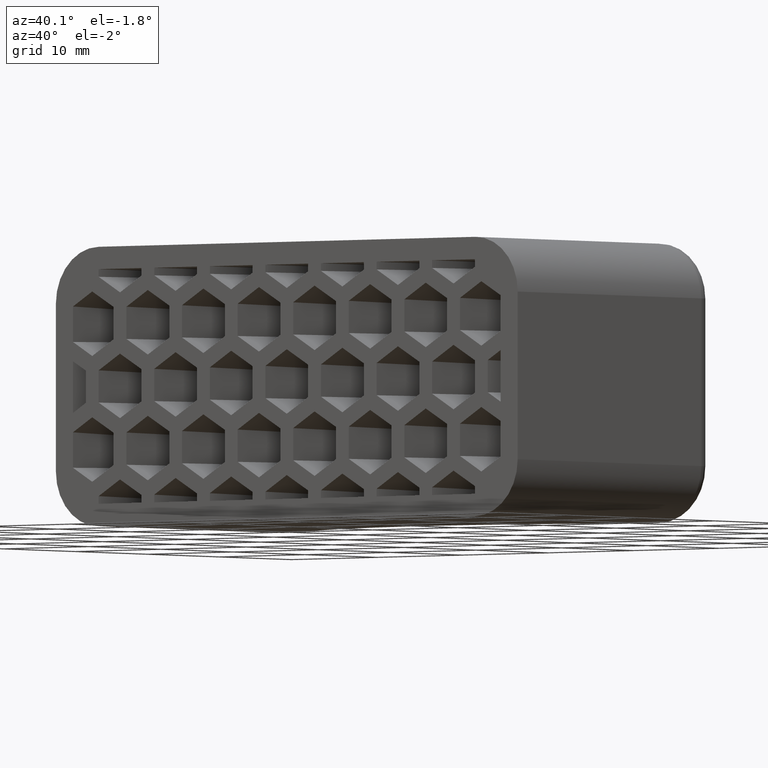
[diagram: clean part render]
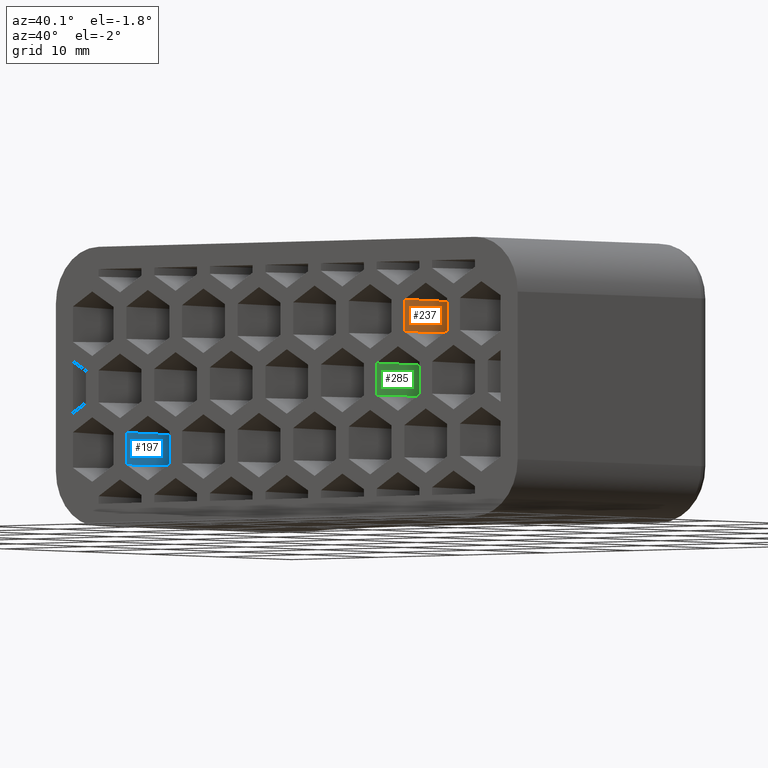
[diagram: same view with three faces highlighted in distinct colors, each labeled with its STEP entity id]
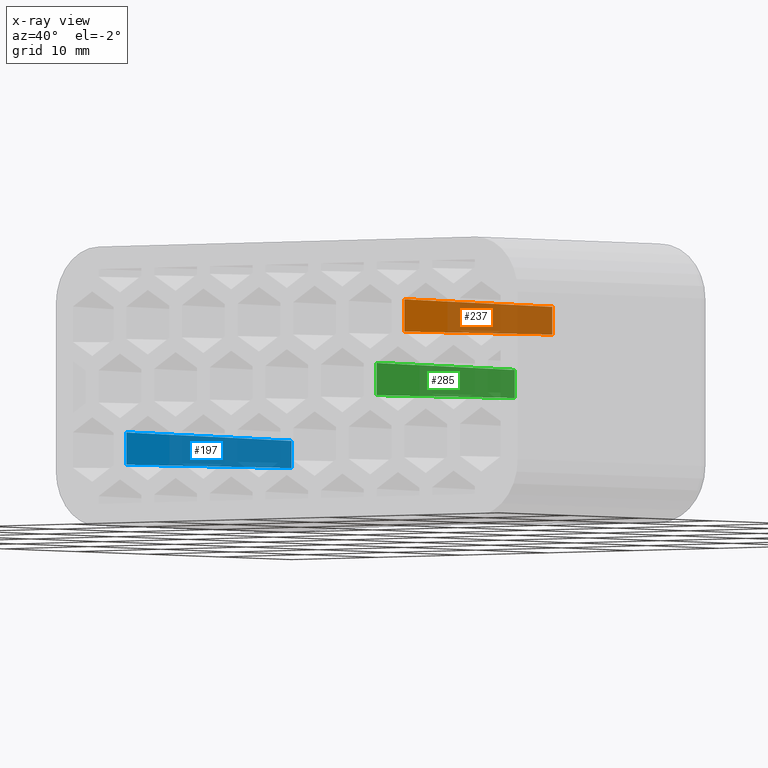
[diagram: x-ray of the same camera — body ghosted, the three highlighted faces saturated]
A machine part, auxiliary view with three faces highlighted in distinct colors.
The next image is the same camera in x-ray (body ghosted, the three faces saturated) — at least one of them is partly hidden behind the body in this view.
Their STEP definitions:

[orange] entity #237 — the highlighted planar face has unit normal (-0.9998, 0.0175, -0).
#237 = ADVANCED_FACE( '', ( #772 ), #773, .F. );
#772 = FACE_OUTER_BOUND( '', #1472, .T. );
#773 = PLANE( '', #1473 );
#1472 = EDGE_LOOP( '', ( #3209, #3210, #3211, #3212 ) );
#1473 = AXIS2_PLACEMENT_3D( '', #3213, #3214, #3215 );
#3209 = ORIENTED_EDGE( '', *, *, #5048, .T. );
#3210 = ORIENTED_EDGE( '', *, *, #5049, .T. );
#3211 = ORIENTED_EDGE( '', *, *, #4581, .T. );
#3212 = ORIENTED_EDGE( '', *, *, #5047, .F. );
#3213 = CARTESIAN_POINT( '', ( 13.7500000000000, 0.000000000000000, 1.44337567297406 ) );
#3214 = DIRECTION( '', ( -0.999847695156391, 0.0174524064372835, -5.55026966140510E-017 ) );
#3215 = DIRECTION( '', ( -0.0174524064372835, -0.999847695156391, 0.000000000000000 ) );
#4581 = EDGE_CURVE( '', #5549, #5547, #5550, .T. );
#5047 = EDGE_CURVE( '', #6315, #5547, #6317, .T. );
#5048 = EDGE_CURVE( '', #6315, #6318, #6319, .T. );
#5049 = EDGE_CURVE( '', #6318, #5549, #6320, .T. );
#5547 = VERTEX_POINT( '', #7057 );
#5549 = VERTEX_POINT( '', #7060 );
#5550 = LINE( '', #7061, #7062 );
#6315 = VERTEX_POINT( '', #8199 );
#6317 = LINE( '', #8201, #8202 );
#6318 = VERTEX_POINT( '', #8203 );
#6319 = LINE( '', #8204, #8205 );
#6320 = LINE( '', #8206, #8207 );
#7057 = CARTESIAN_POINT( '', ( 13.7500000000000, 0.000000000000000, 4.18578945162479 ) );
#7060 = CARTESIAN_POINT( '', ( 13.7500000000000, 0.000000000000000, 7.07254079757291 ) );
#7061 = CARTESIAN_POINT( '', ( 13.7500000000000, 0.000000000000000, 1.44337567297406 ) );
#7062 = VECTOR( '', #8815, 1000.00000000000 );
#8199 = CARTESIAN_POINT( '', ( 14.1010621529154, 20.1123372705367, 4.38847528011280 ) );
#8201 = CARTESIAN_POINT( '', ( 13.7495177870153, -0.0276259633910717, 4.18551104582826 ) );
#8202 = VECTOR( '', #9467, 1000.00000000000 );
#8203 = CARTESIAN_POINT( '', ( 14.1010621529154, 20.1123372705367, 6.86985496908489 ) );
#8204 = CARTESIAN_POINT( '', ( 14.1010621529154, 20.1123372705367, -10.5000000000000 ) );
#8205 = VECTOR( '', #9468, 1000.00000000000 );
#8206 = CARTESIAN_POINT( '', ( 13.7477919721227, -0.126497832369628, 7.07381560306225 ) );
#8207 = VECTOR( '', #9469, 1000.00000000000 );
#8815 = DIRECTION( '', ( 5.55111512312578E-017, 0.000000000000000, -1.00000000000000 ) );
#9467 = DIRECTION( '', ( -0.0174515205435363, -0.999796942337605, -0.0100756400835790 ) );
#9468 = DIRECTION( '', ( 0.000000000000000, 0.000000000000000, 1.00000000000000 ) );
#9469 = DIRECTION( '', ( -0.0174515205435363, -0.999796942337605, 0.0100756400835790 ) );

[blue] entity #197 — the highlighted planar face has unit normal (-0.9998, 0.0175, 0).
#197 = ADVANCED_FACE( '', ( #692 ), #693, .F. );
#692 = FACE_OUTER_BOUND( '', #1392, .T. );
#693 = PLANE( '', #1393 );
#1392 = EDGE_LOOP( '', ( #2923, #2924, #2925, #2926 ) );
#1393 = AXIS2_PLACEMENT_3D( '', #2927, #2928, #2929 );
#2923 = ORIENTED_EDGE( '', *, *, #4962, .T. );
#2924 = ORIENTED_EDGE( '', *, *, #4642, .F. );
#2925 = ORIENTED_EDGE( '', *, *, #4965, .F. );
#2926 = ORIENTED_EDGE( '', *, *, #4966, .F. );
#2927 = CARTESIAN_POINT( '', ( -18.7500000000000, 0.000000000000000, 1.44337567297407 ) );
#2928 = DIRECTION( '', ( -0.999847695156391, 0.0174524064372835, 2.77513483070255E-016 ) );
#2929 = DIRECTION( '', ( -0.0174524064372835, -0.999847695156391, 0.000000000000000 ) );
#4642 = EDGE_CURVE( '', #5669, #5671, #5672, .F. );
#4962 = EDGE_CURVE( '', #6191, #5671, #6192, .T. );
#4965 = EDGE_CURVE( '', #6195, #5669, #6196, .T. );
#4966 = EDGE_CURVE( '', #6191, #6195, #6197, .F. );
#5669 = VERTEX_POINT( '', #7240 );
#5671 = VERTEX_POINT( '', #7243 );
#5672 = LINE( '', #7244, #7245 );
#6191 = VERTEX_POINT( '', #8006 );
#6192 = LINE( '', #8007, #8008 );
#6195 = VERTEX_POINT( '', #8012 );
#6196 = LINE( '', #8013, #8014 );
#6197 = LINE( '', #8015, #8016 );
#7240 = CARTESIAN_POINT( '', ( -18.7500000000000, 0.000000000000000, -7.07254079757292 ) );
#7243 = CARTESIAN_POINT( '', ( -18.7500000000000, 0.000000000000000, -4.18578945162478 ) );
#7244 = CARTESIAN_POINT( '', ( -18.7500000000000, 0.000000000000000, -1.29903810567665 ) );
#7245 = VECTOR( '', #8876, 1000.00000000000 );
#8006 = CARTESIAN_POINT( '', ( -18.3576494798736, 22.4777462438494, -4.41231313003644 ) );
#8007 = CARTESIAN_POINT( '', ( -18.7462691942763, 0.213737716762474, -4.18794343331365 ) );
#8008 = VECTOR( '', #9350, 1000.00000000000 );
#8012 = CARTESIAN_POINT( '', ( -18.3576494798736, 22.4777462438494, -6.84601711916126 ) );
#8013 = CARTESIAN_POINT( '', ( -18.7485026017844, 0.0857858863196337, -7.07167627431004 ) );
#8014 = VECTOR( '', #9355, 1000.00000000000 );
#8015 = CARTESIAN_POINT( '', ( -18.3576494798736, 22.4777462438494, -10.5000000000000 ) );
#8016 = VECTOR( '', #9356, 1000.00000000000 );
#8876 = DIRECTION( '', ( -2.77555756156289E-016, 0.000000000000000, -1.00000000000000 ) );
#9350 = DIRECTION( '', ( -0.0174515205435363, -0.999796942337605, 0.0100756400835790 ) );
#9355 = DIRECTION( '', ( -0.0174515205435363, -0.999796942337605, -0.0100756400835790 ) );
#9356 = DIRECTION( '', ( 0.000000000000000, 0.000000000000000, 1.00000000000000 ) );

[green] entity #285 — the highlighted planar face has unit normal (-0.9998, 0.0175, -0).
#285 = ADVANCED_FACE( '', ( #868 ), #869, .F. );
#868 = FACE_OUTER_BOUND( '', #1568, .T. );
#869 = PLANE( '', #1569 );
#1568 = EDGE_LOOP( '', ( #3549, #3550, #3551, #3552 ) );
#1569 = AXIS2_PLACEMENT_3D( '', #3553, #3554, #3555 );
#3549 = ORIENTED_EDGE( '', *, *, #5150, .T. );
#3550 = ORIENTED_EDGE( '', *, *, #5151, .T. );
#3551 = ORIENTED_EDGE( '', *, *, #4623, .T. );
#3552 = ORIENTED_EDGE( '', *, *, #5149, .F. );
#3553 = CARTESIAN_POINT( '', ( 10.5000000000000, 0.000000000000000, 1.44337567297407 ) );
#3554 = DIRECTION( '', ( -0.999847695156391, 0.0174524064372835, -1.11005393228102E-016 ) );
#3555 = DIRECTION( '', ( -0.0174524064372835, -0.999847695156391, 0.000000000000000 ) );
#4623 = EDGE_CURVE( '', #5633, #5631, #5634, .T. );
#5149 = EDGE_CURVE( '', #6471, #5631, #6473, .T. );
#5150 = EDGE_CURVE( '', #6471, #6474, #6475, .T. );
#5151 = EDGE_CURVE( '', #6474, #5633, #6476, .T. );
#5631 = VERTEX_POINT( '', #7183 );
#5633 = VERTEX_POINT( '', #7186 );
#5634 = LINE( '', #7187, #7188 );
#6471 = VERTEX_POINT( '', #8429 );
#6473 = LINE( '', #8431, #8432 );
#6474 = VERTEX_POINT( '', #8433 );
#6475 = LINE( '', #8434, #8435 );
#6476 = LINE( '', #8436, #8437 );
#7183 = CARTESIAN_POINT( '', ( 10.5000000000000, 0.000000000000000, -1.44337567297406 ) );
#7186 = CARTESIAN_POINT( '', ( 10.5000000000000, 0.000000000000000, 1.44337567297406 ) );
#7187 = CARTESIAN_POINT( '', ( 10.5000000000000, 0.000000000000000, 1.44337567297406 ) );
#7188 = VECTOR( '', #8857, 1000.00000000000 );
#8429 = CARTESIAN_POINT( '', ( 10.8281244629789, 18.7982378941763, -1.25393292594549 ) );
#8431 = CARTESIAN_POINT( '', ( 10.5005075926155, 0.0290799614642845, -1.44308261424089 ) );
#8432 = VECTOR( '', #9625, 1000.00000000000 );
#8433 = CARTESIAN_POINT( '', ( 10.8281244629789, 18.7982378941764, 1.25393292594547 ) );
#8434 = CARTESIAN_POINT( '', ( 10.8281244629789, 18.7982378941764, -10.5000000000000 ) );
#8435 = VECTOR( '', #9626, 1000.00000000000 );
#8436 = CARTESIAN_POINT( '', ( 10.4987817777229, -0.0697919075142786, 1.44407901393369 ) );
#8437 = VECTOR( '', #9627, 1000.00000000000 );
#8857 = DIRECTION( '', ( 1.11022302462516E-016, 0.000000000000000, -1.00000000000000 ) );
#9625 = DIRECTION( '', ( -0.0174515205435363, -0.999796942337605, -0.0100756400835790 ) );
#9626 = DIRECTION( '', ( 0.000000000000000, 0.000000000000000, 1.00000000000000 ) );
#9627 = DIRECTION( '', ( -0.0174515205435363, -0.999796942337605, 0.0100756400835790 ) );